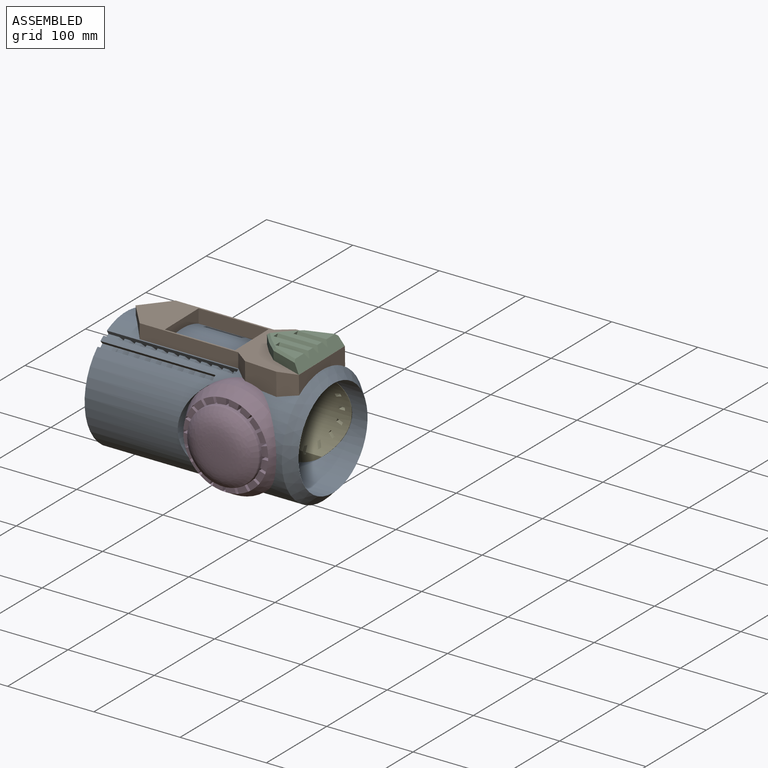
[diagram: assembled view]
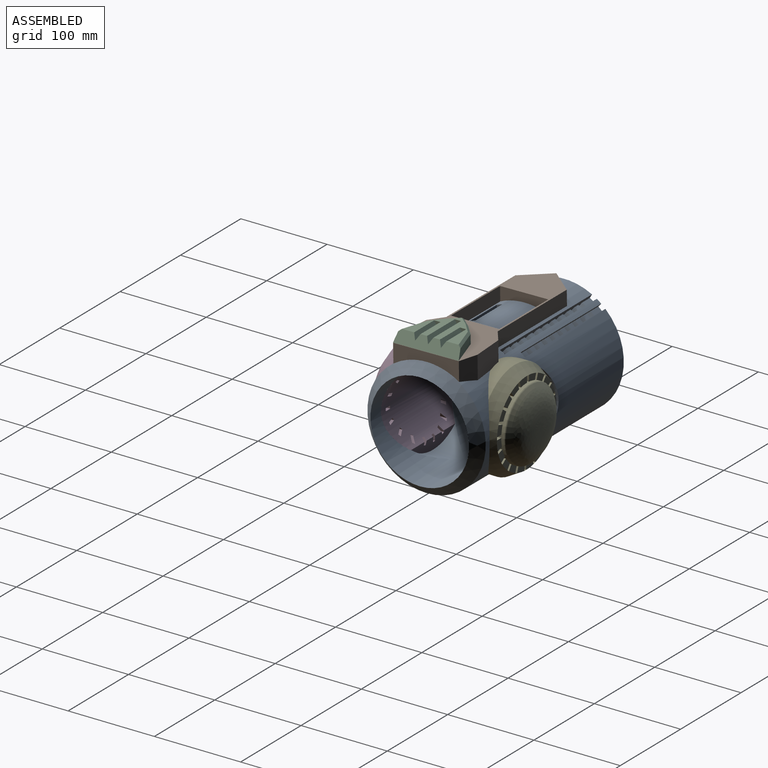
[diagram: assembled view, second angle]
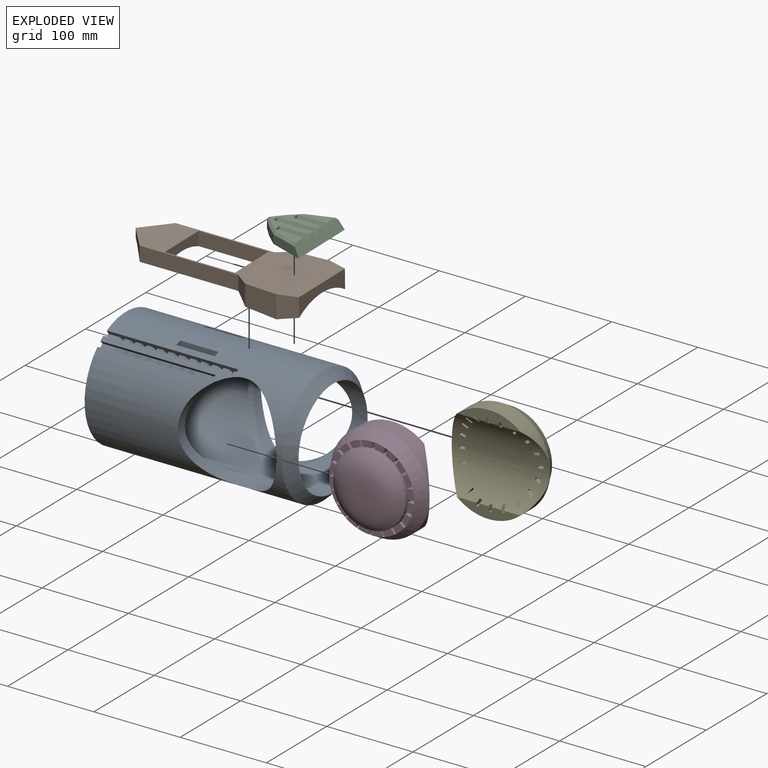
[diagram: exploded view]
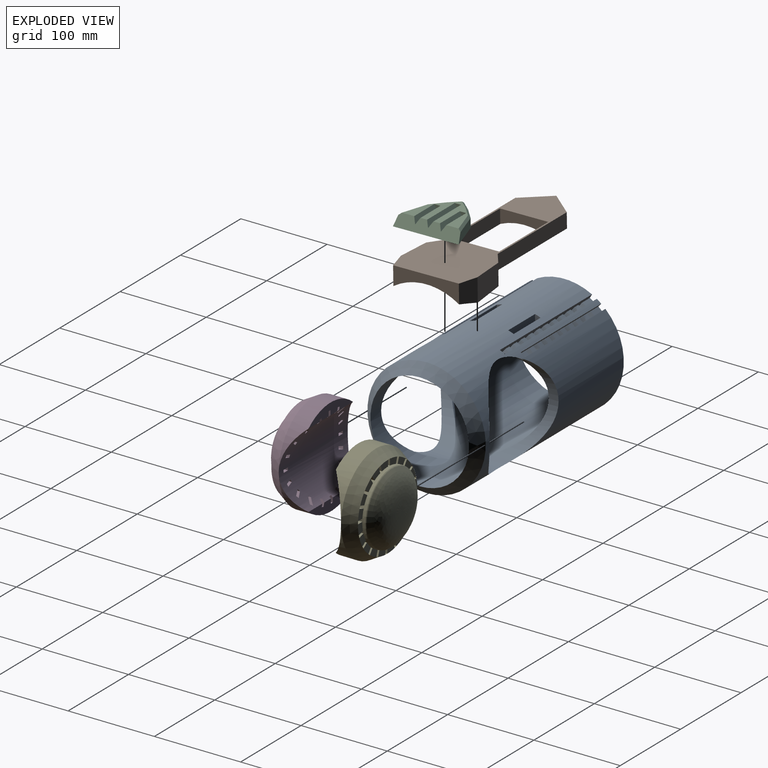
[diagram: exploded view, second angle]
ASSEMBLY  parts=5 mates=4
PART A: 139 faces, bbox 240.1x137.2x137.2 mm
  f0: cylinder r=57.15mm len=165.1mm, axis (-1,0,0), area 43709.9mm2, adj f14,f29,f31,f38,f41,f45,f49,f51
  f1: plane 131.1x4.8mm, normal (0,-0.65,0.76), area 447mm2, adj f14,f31,f35,f36,f88,f91,f92,f94
  f2: plane 6.43x5.49mm, normal (0,-0.5,0.86), area 40.3mm2, adj f41,f42,f110,f128
  f3: plane 6.43x5.49mm, normal (0,-0.5,0.86), area 40.3mm2, adj f41,f42,f104,f130
  f4: plane 6.43x5.49mm, normal (0,-0.5,0.86), area 40.3mm2, adj f41,f42,f114,f124
  f5: plane 6.43x5.49mm, normal (0,-0.5,0.86), area 40.3mm2, adj f41,f42,f116,f126
  f6: plane 6.43x5.49mm, normal (0,-0.5,0.86), area 40.3mm2, adj f41,f42,f102,f120
  f7: plane 6.43x5.49mm, normal (0,-0.5,0.86), area 40.3mm2, adj f41,f42,f112,f122
  f8: plane 6.43x5.49mm, normal (0,-0.5,0.86), area 40.3mm2, adj f41,f42,f108,f118
  f9: plane 6.35x4.29mm, normal (0,-0.5,0.86), area 19mm2, adj f14,f41,f43,f98
  f10: plane 6.43x5.49mm, normal (0,-0.5,0.86), area 40.3mm2, adj f41,f42,f92,f106
  f11: plane 6.43x5.49mm, normal (0,-0.5,0.86), area 40.3mm2, adj f41,f42,f88,f94
  f12: plane 12.78x5.49mm, normal (0,-0.5,0.86), area 81mm2, adj f31,f41,f42,f100
  f13: plane 6.43x5.49mm, normal (0,-0.5,0.86), area 40.3mm2, adj f41,f42,f90,f96
  f14: cylinder r=57.15mm len=114.3mm, axis (0,-1,0), area 6316.5mm2, adj f0,f1,f9,f30,f32,f36,f37,f41
  f15: plane 131.1x4.8mm, normal (0,0.65,0.76), area 447mm2, adj f29,f31,f33,f34,f45,f48,f49,f51
  f16: plane 8.13x6.38mm, normal (-1,0,0), area 29.7mm2, adj f29,f32,f33,f34,f47
  f17: plane 6.43x5.49mm, normal (0,0.5,0.86), area 40.3mm2, adj f38,f39,f66,f85
  f18: plane 6.43x5.49mm, normal (0,0.5,0.86), area 40.3mm2, adj f38,f39,f61,f86
  f19: plane 6.43x5.49mm, normal (0,0.5,0.86), area 40.3mm2, adj f38,f39,f70,f81
  f20: plane 6.43x5.49mm, normal (0,0.5,0.86), area 40.3mm2, adj f38,f39,f73,f82
  f21: plane 6.43x5.49mm, normal (0,0.5,0.86), area 40.3mm2, adj f38,f39,f58,f77
  f22: plane 6.43x5.49mm, normal (0,0.5,0.86), area 40.3mm2, adj f38,f39,f69,f78
  f23: plane 6.43x5.49mm, normal (0,0.5,0.86), area 40.3mm2, adj f38,f39,f65,f74
  f24: plane 6.35x4.29mm, normal (0,0.5,0.86), area 19mm2, adj f29,f38,f40,f55
  f25: plane 6.43x5.49mm, normal (0,0.5,0.86), area 40.3mm2, adj f38,f39,f49,f62
  f26: plane 6.43x5.49mm, normal (0,0.5,0.86), area 40.3mm2, adj f38,f39,f45,f51
  f27: plane 12.78x5.49mm, normal (0,0.5,0.86), area 81mm2, adj f31,f38,f39,f57
  f28: plane 6.43x5.49mm, normal (0,0.5,0.86), area 40.3mm2, adj f38,f39,f47,f53
  f29: cylinder r=57.15mm len=114.3mm, axis (0,-1,0), area 6308mm2, adj f0,f15,f16,f24,f30,f32,f33,f38
  f30: cylinder r=57.15mm len=114.3mm, axis (-1,0,0), area 13841.7mm2, adj f14,f29,f44
  f31: plane 137.16x137.16mm, normal (-1,0,0), area 4384.5mm2, adj f0,f1,f12,f15,f27,f32,f33,f34
  f32: cylinder r=68.58mm len=228.6mm, axis (-1,0,0), area 71213.9mm2, adj f14,f16,f29,f31,f33,f34,f35,f36
  f33: plane 133.37x3.87mm, normal (0,-0.76,0.65), area 674.9mm2, adj f15,f16,f29,f31,f32
  f34: plane 133.35x3.84mm, normal (0,0.76,-0.65), area 677.4mm2, adj f15,f16,f31,f32,f46,f50,f59,f63
  f35: plane 133.35x3.84mm, normal (0,-0.76,-0.65), area 677.4mm2, adj f1,f31,f32,f37,f89,f93,f101,f105
  f36: plane 133.37x3.87mm, normal (0,0.76,0.65), area 674.9mm2, adj f1,f14,f31,f32,f37
  f37: plane 8.13x6.38mm, normal (-1,0,0), area 29.7mm2, adj f14,f32,f35,f36,f90
  f38: plane 152.46x9.94mm, normal (0,0.86,-0.5), area 1197.5mm2, adj f0,f17,f18,f19,f20,f21,f22,f23
  f39: plane 152.4x4.39mm, normal (0,-0.86,0.5), area 761.2mm2, adj f17,f18,f19,f20,f21,f22,f23,f25
  f40: plane 8.04x5.07mm, normal (-1,0,0), area 25.3mm2, adj f24,f29,f32,f38,f39
  f41: plane 152.46x9.94mm, normal (0,-0.86,-0.5), area 1197.5mm2, adj f0,f2,f3,f4,f5,f6,f7,f8
  f42: plane 152.4x4.39mm, normal (0,0.86,0.5), area 761.2mm2, adj f2,f3,f4,f5,f6,f7,f8,f10
  f43: plane 8.04x5.07mm, normal (-1,0,0), area 25.3mm2, adj f9,f14,f32,f41,f42
  f44: cone r=55.88mm half-angle=45deg, axis (-1,0,0), area 6384.8mm2, adj f30,f32
  f45: revolved ~17.86x14.84mm, area 124.8mm2, adj f0,f15,f26,f29,f38,f46,f48
  f46: cylinder r=63.51mm len=6.35mm, axis (1,0,0), area 34.4mm2, adj f34,f39,f45,f47
  f47: revolved ~16.06x13.31mm, area 70.4mm2, adj f16,f28,f29,f38,f46
  f48: plane 4.12x1.62mm, normal (0,-0.69,0.73), area 4.5mm2, adj f15,f29,f45
  f49: revolved ~17.86x14.84mm, area 151.5mm2, adj f0,f15,f25,f38,f50,f52
  f50: cylinder r=63.51mm len=6.35mm, axis (1,0,0), area 34.4mm2, adj f34,f39,f49,f51
  f51: revolved ~17.86x14.84mm, area 151mm2, adj f0,f15,f26,f29,f38,f50,f52
  f52: plane 11.99x4.62mm, normal (0,-0.69,0.73), area 40.1mm2, adj f0,f15,f29,f49,f51
  f53: revolved ~10.4x8.3mm, area 27.9mm2, adj f28,f29,f38,f54
  f54: cylinder r=63.51mm len=4.53mm, axis (1,0,0), area 8mm2, adj f29,f39,f53
  f55: revolved ~5.39x4.2mm, area 7mm2, adj f24,f29,f38
  f56: plane 12.55x4.62mm, normal (0,-0.69,0.73), area 40.4mm2, adj f0,f15,f57,f58
  f57: revolved ~17.86x14.84mm, area 151.5mm2, adj f0,f15,f27,f38,f56,f59
  f58: revolved ~17.86x14.84mm, area 151.5mm2, adj f0,f15,f21,f38,f56,f59
  f59: cylinder r=63.51mm len=6.35mm, axis (1,0,0), area 34.4mm2, adj f34,f39,f57,f58
  f60: plane 12.55x4.62mm, normal (0,-0.69,0.73), area 40.4mm2, adj f0,f15,f61,f62
  f61: revolved ~17.86x14.84mm, area 151.5mm2, adj f0,f15,f18,f38,f60,f63
  f62: revolved ~17.86x14.84mm, area 151.5mm2, adj f0,f15,f25,f38,f60,f63
  f63: cylinder r=63.51mm len=6.35mm, axis (1,0,0), area 34.4mm2, adj f34,f39,f61,f62
  f64: plane 12.55x4.62mm, normal (0,-0.69,0.73), area 40.4mm2, adj f0,f15,f65,f66
  f65: revolved ~17.86x14.84mm, area 151.5mm2, adj f0,f15,f23,f38,f64,f67
  f66: revolved ~17.86x14.84mm, area 151.5mm2, adj f0,f15,f17,f38,f64,f67
  f67: cylinder r=63.51mm len=6.35mm, axis (1,0,0), area 34.4mm2, adj f34,f39,f65,f66
  f68: plane 12.55x4.62mm, normal (0,-0.69,0.73), area 40.4mm2, adj f0,f15,f69,f70
  f69: revolved ~17.86x14.84mm, area 151.5mm2, adj f0,f15,f22,f38,f68,f71
  f70: revolved ~17.86x14.84mm, area 151.5mm2, adj f0,f15,f19,f38,f68,f71
  f71: cylinder r=63.51mm len=6.35mm, axis (1,0,0), area 34.4mm2, adj f34,f39,f69,f70
  f72: plane 12.55x4.62mm, normal (0,-0.69,0.73), area 40.4mm2, adj f0,f15,f73,f74
  f73: revolved ~17.86x14.84mm, area 151.5mm2, adj f0,f15,f20,f38,f72,f75
  f74: revolved ~17.86x14.84mm, area 151.5mm2, adj f0,f15,f23,f38,f72,f75
  f75: cylinder r=63.51mm len=6.35mm, axis (1,0,0), area 34.4mm2, adj f34,f39,f73,f74
  f76: plane 12.55x4.62mm, normal (0,-0.69,0.73), area 40.4mm2, adj f0,f15,f77,f78
  f77: revolved ~17.86x14.84mm, area 151.5mm2, adj f0,f15,f21,f38,f76,f79
  f78: revolved ~17.86x14.84mm, area 151.5mm2, adj f0,f15,f22,f38,f76,f79
  f79: cylinder r=63.51mm len=6.35mm, axis (1,0,0), area 34.4mm2, adj f34,f39,f77,f78
  f80: plane 12.55x4.62mm, normal (0,-0.69,0.73), area 40.4mm2, adj f0,f15,f81,f82
  f81: revolved ~17.86x14.84mm, area 151.5mm2, adj f0,f15,f19,f38,f80,f83
  f82: revolved ~17.86x14.84mm, area 151.5mm2, adj f0,f15,f20,f38,f80,f83
  f83: cylinder r=63.51mm len=6.35mm, axis (1,0,0), area 34.4mm2, adj f34,f39,f81,f82
  f84: plane 12.55x4.62mm, normal (0,-0.69,0.73), area 40.4mm2, adj f0,f15,f85,f86
  f85: revolved ~17.86x14.84mm, area 151.5mm2, adj f0,f15,f17,f38,f84,f87
  f86: revolved ~17.86x14.84mm, area 151.5mm2, adj f0,f15,f18,f38,f84,f87
  f87: cylinder r=63.51mm len=6.35mm, axis (1,0,0), area 34.4mm2, adj f34,f39,f85,f86
  f88: revolved ~17.86x14.84mm, area 124.8mm2, adj f0,f1,f11,f14,f41,f89,f91
  f89: cylinder r=63.51mm len=6.35mm, axis (1,0,0), area 34.4mm2, adj f35,f42,f88,f90
  f90: revolved ~16.06x13.31mm, area 70.4mm2, adj f13,f14,f37,f41,f89
  f91: plane 4.12x1.62mm, normal (0,0.69,0.73), area 4.5mm2, adj f1,f14,f88
  f92: revolved ~17.86x14.84mm, area 151.5mm2, adj f0,f1,f10,f41,f93,f95
  f93: cylinder r=63.51mm len=6.35mm, axis (1,0,0), area 34.4mm2, adj f35,f42,f92,f94
  f94: revolved ~17.86x14.84mm, area 151mm2, adj f0,f1,f11,f14,f41,f93,f95
  f95: plane 11.99x4.62mm, normal (0,0.69,0.73), area 40.1mm2, adj f0,f1,f14,f92,f94
  f96: revolved ~10.4x8.3mm, area 27.9mm2, adj f13,f14,f41,f97
  f97: cylinder r=63.51mm len=4.53mm, axis (1,0,0), area 8mm2, adj f14,f42,f96
  f98: revolved ~5.39x4.2mm, area 7mm2, adj f9,f14,f41
  f99: plane 12.55x4.62mm, normal (0,0.69,0.73), area 40.4mm2, adj f0,f1,f100,f102
  f100: revolved ~126.9x126.69mm, area 3518.1mm2, adj f0,f1,f12,f41,f99,f101
  f101: cylinder r=63.51mm len=6.35mm, axis (1,0,0), area 34.4mm2, adj f35,f42,f100,f102
  f102: revolved ~126.9x126.69mm, area 3518.1mm2, adj f0,f1,f6,f41,f99,f101
  f103: plane 12.55x4.62mm, normal (0,0.69,0.73), area 40.4mm2, adj f0,f1,f104,f106
  f104: revolved ~126.9x126.69mm, area 3518.1mm2, adj f0,f1,f3,f41,f103,f105
  f105: cylinder r=63.51mm len=6.35mm, axis (1,0,0), area 34.4mm2, adj f35,f42,f104,f106
  f106: revolved ~126.9x126.69mm, area 3518.1mm2, adj f0,f1,f10,f41,f103,f105
  f107: plane 12.55x4.62mm, normal (0,0.69,0.73), area 40.4mm2, adj f0,f1,f108,f110
  f108: revolved ~17.86x14.84mm, area 151.5mm2, adj f0,f1,f8,f41,f107,f109
  f109: cylinder r=63.51mm len=6.35mm, axis (1,0,0), area 34.4mm2, adj f35,f42,f108,f110
  f110: revolved ~126.9x126.69mm, area 3518.1mm2, adj f0,f1,f2,f41,f107,f109
  f111: plane 12.55x4.62mm, normal (0,0.69,0.73), area 40.4mm2, adj f0,f1,f112,f114
  f112: revolved ~126.9x126.69mm, area 3518.1mm2, adj f0,f1,f7,f41,f111,f113
  f113: cylinder r=63.51mm len=6.35mm, axis (1,0,0), area 34.4mm2, adj f35,f42,f112,f114
  f114: revolved ~126.9x126.69mm, area 3518.1mm2, adj f0,f1,f4,f41,f111,f113
  f115: plane 12.55x4.62mm, normal (0,0.69,0.73), area 40.4mm2, adj f0,f1,f116,f118
  f116: revolved ~126.9x126.69mm, area 3518.1mm2, adj f0,f1,f5,f41,f115,f117
  f117: cylinder r=63.51mm len=6.35mm, axis (1,0,0), area 34.4mm2, adj f35,f42,f116,f118
  f118: revolved ~126.9x126.69mm, area 3518.1mm2, adj f0,f1,f8,f41,f115,f117
  f119: plane 12.55x4.62mm, normal (0,0.69,0.73), area 40.4mm2, adj f0,f1,f120,f122
  f120: revolved ~17.86x14.84mm, area 151.5mm2, adj f0,f1,f6,f41,f119,f121
  f121: cylinder r=63.51mm len=6.35mm, axis (1,0,0), area 34.4mm2, adj f35,f42,f120,f122
  f122: revolved ~126.9x126.69mm, area 3518.1mm2, adj f0,f1,f7,f41,f119,f121
  f123: plane 12.55x4.62mm, normal (0,0.69,0.73), area 40.4mm2, adj f0,f1,f124,f126
  f124: revolved ~17.86x14.84mm, area 151.5mm2, adj f0,f1,f4,f41,f123,f125
  f125: cylinder r=63.51mm len=6.35mm, axis (1,0,0), area 34.4mm2, adj f35,f42,f124,f126
  f126: revolved ~126.9x126.69mm, area 3518.1mm2, adj f0,f1,f5,f41,f123,f125
  f127: plane 12.55x4.62mm, normal (0,0.69,0.73), area 40.4mm2, adj f0,f1,f128,f130
  f128: revolved ~17.86x14.84mm, area 151.5mm2, adj f0,f1,f2,f41,f127,f129
  f129: cylinder r=63.51mm len=6.35mm, axis (1,0,0), area 34.4mm2, adj f35,f42,f128,f130
  f130: revolved ~126.9x126.69mm, area 3518.1mm2, adj f0,f1,f3,f41,f127,f129
  f131: plane 44.45x12.51mm, normal (0,-1,0), area 556mm2, adj f0,f32,f132,f134
  f132: plane 14.69x6.35mm, normal (1,0,0), area 77.7mm2, adj f0,f32,f131,f133
  f133: plane 44.45x12mm, normal (0,1,0), area 533.4mm2, adj f0,f32,f132,f134
  f134: plane 14.69x6.35mm, normal (-1,0,0), area 77.7mm2, adj f0,f32,f131,f133
  f135: plane 44.45x12.51mm, normal (0,1,0), area 556mm2, adj f0,f32,f136,f138
  f136: plane 14.69x6.35mm, normal (-1,0,0), area 77.7mm2, adj f0,f32,f135,f137
  f137: plane 44.45x12mm, normal (0,-1,0), area 533.4mm2, adj f0,f32,f136,f138
  f138: plane 14.69x6.35mm, normal (1,0,0), area 77.7mm2, adj f0,f32,f135,f137
PART B: 17 faces, bbox 215.9x88.9x26.5 mm
  f0: plane 215.9x88.9mm, normal (0,0,1), area 9297.3mm2, adj f2,f3,f4,f5,f6,f7,f8,f9
  f1: cylinder r=68.58mm len=215.9mm, axis (1,0,0), area 9875.5mm2, adj f2,f3,f4,f5,f6,f7,f8,f9
  f2: plane 26.52x21.83mm, normal (0.28,-0.96,0), area 546.2mm2, adj f0,f1,f3,f12
  f3: plane 76.2x21.72mm, normal (1,0,0), area 1057.1mm2, adj f0,f1,f2,f4
  f4: plane 26.52x21.83mm, normal (0.28,0.96,0), area 546.2mm2, adj f0,f1,f3,f5
  f5: plane 38.02x26.52mm, normal (-0.07,1,0), area 970.4mm2, adj f0,f1,f4,f6
  f6: plane 24.46x16.35mm, normal (-0.59,0.8,0), area 415.3mm2, adj f0,f1,f5,f7
  f7: plane 114.3x16.99mm, normal (0,1,0), area 1942.5mm2, adj f0,f1,f6,f8
  f8: plane 29.85x25.4mm, normal (-0.76,0.65,0), area 485.6mm2, adj f0,f1,f7,f9
  f9: plane 29.85x25.4mm, normal (-0.76,-0.65,0), area 485.6mm2, adj f0,f1,f8,f10
  f10: plane 114.3x16.99mm, normal (0,-1,0), area 1942.5mm2, adj f0,f1,f9,f11
  f11: plane 24.46x16.35mm, normal (-0.59,-0.8,0), area 415.3mm2, adj f0,f1,f10,f12
  f12: plane 38.02x26.52mm, normal (-0.07,-1,0), area 970.4mm2, adj f0,f1,f2,f11
  f13: plane 81.28x16.11mm, normal (0,-1,0), area 1309.4mm2, adj f0,f1,f14,f16
  f14: plane 55.88x16.11mm, normal (1,0,0), area 676.6mm2, adj f0,f1,f13,f15
  f15: plane 81.28x16.11mm, normal (0,1,0), area 1309.4mm2, adj f0,f1,f14,f16
  f16: plane 55.88x16.11mm, normal (-1,0,0), area 676.6mm2, adj f0,f1,f13,f15
PART C: 24 faces, bbox 63.5x76.2x12.7 mm
  f0: plane 65.77x52.49mm, normal (0,0,1), area 1386.4mm2, adj f8,f9,f10,f11,f12,f13,f14,f15
  f1: plane 38.1x12.7mm, normal (-0.32,0.95,0), area 375.4mm2, adj f2,f7,f17,f23
  f2: plane 14.17x12.7mm, normal (-0.67,0.74,0), area 193.3mm2, adj f1,f3,f7,f22
  f3: plane 12.7x11.23mm, normal (-0.75,0.66,0), area 172.2mm2, adj f2,f4,f7,f21
  f4: plane 12.7x11.23mm, normal (-0.75,-0.66,0), area 172.2mm2, adj f3,f5,f7,f20
  f5: plane 14.17x12.7mm, normal (-0.67,-0.74,0), area 193.3mm2, adj f4,f6,f7,f19
  f6: plane 38.1x12.7mm, normal (-0.32,-0.95,0), area 375.4mm2, adj f5,f7,f17,f18
  f7: plane 76.2x63.5mm, normal (0,0,-1), area 3101.9mm2, adj f1,f2,f3,f4,f5,f6,f17
  f8: plane 36.83x6.35mm, normal (0,0.87,0.5), area 256.1mm2, adj f0,f9,f10,f17
  f9: plane 36.83x6.35mm, normal (0,-0.87,0.5), area 256.1mm2, adj f0,f8,f10,f17
  f10: plane 7.33x6.35mm, normal (1,0,0), area 23.3mm2, adj f0,f8,f9
  f11: plane 36.83x6.35mm, normal (0,0.87,0.5), area 256.1mm2, adj f0,f12,f13,f17
  f12: plane 36.83x6.35mm, normal (0,-0.87,0.5), area 256.1mm2, adj f0,f11,f13,f17
  f13: plane 7.33x6.35mm, normal (1,0,0), area 23.3mm2, adj f0,f11,f12
  f14: plane 49.53x6.35mm, normal (0,0.87,0.5), area 349.2mm2, adj f0,f15,f16,f17
  f15: plane 49.53x6.35mm, normal (0,-0.87,0.5), area 349.2mm2, adj f0,f14,f16,f17
  f16: plane 7.33x6.35mm, normal (1,0,0), area 23.3mm2, adj f0,f14,f15
  f17: plane 76.2x12.7mm, normal (0.86,0,0.51), area 1001.6mm2, adj f0,f1,f6,f7,f8,f9,f11,f12
  f18: plane 32x12.91mm, normal (-0.22,-0.67,0.71), area 115.8mm2, adj f0,f6,f17,f19
  f19: plane 15.47x14.49mm, normal (-0.47,-0.53,0.71), area 67.1mm2, adj f0,f5,f18,f20
  f20: plane 13.03x12.7mm, normal (-0.53,-0.47,0.71), area 56.6mm2, adj f0,f4,f19,f21
  f21: plane 13.03x12.7mm, normal (-0.53,0.47,0.71), area 56.6mm2, adj f0,f3,f20,f22
  f22: plane 15.47x14.49mm, normal (-0.47,0.53,0.71), area 67.1mm2, adj f0,f2,f21,f23
  f23: plane 32x12.91mm, normal (-0.22,0.67,0.71), area 115.8mm2, adj f0,f1,f17,f22
PART D: 89 faces, bbox 114.3x40.1x114.3 mm
  f0: cylinder r=57.15mm len=114.3mm, axis (1,0,0), area 9539.3mm2, adj f21,f22,f23,f24,f26,f28,f29,f31
  f1: plane 13.32x10.93mm, normal (0,-1,0), area 79.6mm2, adj f25,f26,f84,f85
  f2: plane 13.18x12.53mm, normal (0,-1,0), area 79.6mm2, adj f25,f26,f81,f83
  f3: plane 12.9x11.74mm, normal (0,-1,0), area 79.6mm2, adj f25,f26,f78,f80
  f4: plane 12.01x9.16mm, normal (0,-1,0), area 79.6mm2, adj f25,f26,f75,f77
  f5: plane 12.16x8.26mm, normal (0,-1,0), area 79.6mm2, adj f25,f26,f72,f74
  f6: plane 13.32x10.93mm, normal (0,-1,0), area 79.6mm2, adj f25,f26,f69,f71
  f7: plane 13.18x12.53mm, normal (0,-1,0), area 79.6mm2, adj f25,f26,f66,f68
  f8: plane 12.9x11.74mm, normal (0,-1,0), area 79.6mm2, adj f25,f26,f62,f65
  f9: plane 12.01x9.16mm, normal (0,-1,0), area 79.6mm2, adj f25,f26,f59,f61
  f10: plane 12.16x8.26mm, normal (0,-1,0), area 79.6mm2, adj f25,f26,f56,f58
  f11: plane 13.32x10.93mm, normal (0,-1,0), area 79.6mm2, adj f25,f26,f54,f55
  f12: plane 13.18x12.53mm, normal (0,-1,0), area 79.6mm2, adj f25,f26,f51,f53
  f13: plane 12.9x11.74mm, normal (0,-1,0), area 79.6mm2, adj f25,f26,f48,f50
  f14: plane 12.01x9.16mm, normal (0,-1,0), area 79.6mm2, adj f25,f26,f45,f47
  f15: plane 12.16x8.26mm, normal (0,-1,0), area 79.6mm2, adj f25,f26,f42,f44
  f16: plane 13.32x10.93mm, normal (0,-1,0), area 79.6mm2, adj f25,f26,f39,f41
  f17: plane 13.18x12.53mm, normal (0,-1,0), area 79.6mm2, adj f25,f26,f36,f38
  f18: plane 12.9x11.74mm, normal (0,-1,0), area 79.6mm2, adj f25,f26,f32,f35
  f19: plane 12.01x9.16mm, normal (0,-1,0), area 79.6mm2, adj f25,f26,f29,f31
  f20: plane 12.16x8.26mm, normal (0,-1,0), area 79.6mm2, adj f25,f26,f28,f86
  f21: cylinder r=57.15mm len=114.3mm, axis (0,-1,0), area 2317.9mm2, adj f0,f24,f25
  f22: cylinder r=57.15mm len=114.3mm, axis (0,-1,0), area 2317.9mm2, adj f0,f23,f25
  f23: plane 73.66x13.45mm, normal (0,1,0), area 640.2mm2, adj f0,f22,f55,f56,f57,f58,f59,f60
  f24: plane 73.66x13.45mm, normal (0,1,0), area 640.2mm2, adj f0,f21,f28,f29,f30,f31,f32,f33
  f25: cone r=49.19mm half-angle=29.4deg, axis (0,1,0), area 5415.1mm2, adj f1,f2,f3,f4,f5,f6,f7,f8
  f26: cylinder r=42.06mm len=84.11mm, axis (0,1,0), area 2263.9mm2, adj f0,f1,f2,f3,f4,f5,f6,f7
  f27: revolved ~0x0mm, area 0mm2, adj f88
  f28: plane 34.44x7.13mm, normal (1,0,0), area 244.1mm2, adj f0,f20,f24,f26,f30
  f29: plane 34.44x7.15mm, normal (-1,0,0), area 244.5mm2, adj f0,f19,f24,f26,f30
  f30: cylinder r=49.19mm len=34.44mm, axis (0,-1,0), area 109.4mm2, adj f24,f25,f28,f29
  f31: plane 34.44x6.78mm, normal (0.95,0,-0.31), area 237.3mm2, adj f0,f19,f24,f26,f33
  f32: plane 34.44x6.8mm, normal (-0.95,0,0.31), area 232.6mm2, adj f0,f18,f24,f26,f33
  f33: cylinder r=49.19mm len=34.44mm, axis (0,-1,0), area 109.4mm2, adj f24,f25,f31,f32
  f34: cylinder r=49.19mm len=30.09mm, axis (0,-1,0), area 92.7mm2, adj f0,f25,f35,f36
  f35: plane 30.09x5.77mm, normal (0.81,0,-0.59), area 196.5mm2, adj f0,f18,f26,f34
  f36: plane 28.28x5.79mm, normal (-0.81,0,0.59), area 185.7mm2, adj f0,f17,f26,f34
  f37: cylinder r=49.19mm len=21.84mm, axis (0,-1,0), area 67mm2, adj f0,f25,f38,f39
  f38: plane 21.84x5.77mm, normal (0.59,0,-0.81), area 147.6mm2, adj f0,f17,f26,f37
  f39: plane 20.4x5.79mm, normal (-0.59,0,0.81), area 138.7mm2, adj f0,f16,f26,f37
  f40: cylinder r=49.19mm len=16.1mm, axis (0,-1,0), area 49.9mm2, adj f0,f25,f41,f42
  f41: plane 16.12x6.8mm, normal (0.31,0,-0.95), area 112.8mm2, adj f0,f16,f26,f40
  f42: plane 15.38x6.82mm, normal (-0.31,0,0.95), area 108.4mm2, adj f0,f15,f26,f40
  f43: cylinder r=49.19mm len=14.22mm, axis (0,-1,0), area 45mm2, adj f0,f25,f44,f45
  f44: plane 14.12x7.13mm, normal (0,0,-1), area 100.7mm2, adj f0,f15,f26,f43
  f45: plane 14.22x7.15mm, normal (0,0,1), area 101.8mm2, adj f0,f14,f26,f43
  f46: cylinder r=49.19mm len=17.18mm, axis (0,-1,0), area 53mm2, adj f0,f25,f47,f48
  f47: plane 16.27x6.8mm, normal (-0.31,0,-0.95), area 113.8mm2, adj f0,f14,f26,f46
  f48: plane 17.18x6.8mm, normal (0.31,0,0.95), area 120.3mm2, adj f0,f13,f26,f46
  f49: cylinder r=49.19mm len=23.68mm, axis (0,-1,0), area 72.7mm2, adj f0,f25,f50,f51
  f50: plane 22.11x5.77mm, normal (-0.59,0,-0.81), area 149.4mm2, adj f0,f13,f26,f49
  f51: plane 23.68x5.79mm, normal (0.59,0,0.81), area 160mm2, adj f0,f12,f26,f49
  f52: cylinder r=49.19mm len=32.22mm, axis (0,-1,0), area 99.5mm2, adj f0,f25,f53,f54
  f53: plane 30.42x5.77mm, normal (-0.81,0,-0.59), area 198.6mm2, adj f0,f12,f26,f52
  f54: plane 32.22x5.79mm, normal (0.81,0,0.59), area 210.4mm2, adj f0,f11,f26,f52
  f55: plane 34.44x6.78mm, normal (-0.95,0,-0.31), area 238mm2, adj f0,f11,f23,f26,f57
  f56: plane 34.46x6.82mm, normal (0.95,0,0.31), area 241.8mm2, adj f0,f10,f23,f26,f57
  f57: cylinder r=49.19mm len=34.44mm, axis (0,-1,0), area 109.4mm2, adj f23,f25,f55,f56
  f58: plane 34.44x7.13mm, normal (-1,0,0), area 244.1mm2, adj f0,f10,f23,f26,f60
  f59: plane 34.44x7.15mm, normal (1,0,0), area 244.5mm2, adj f0,f9,f23,f26,f60
  f60: cylinder r=49.19mm len=34.44mm, axis (0,-1,0), area 109.4mm2, adj f23,f25,f58,f59
  f61: plane 34.44x6.78mm, normal (-0.95,0,0.31), area 237.3mm2, adj f0,f9,f23,f26,f63
  f62: plane 34.44x6.8mm, normal (0.95,0,-0.31), area 232.6mm2, adj f0,f8,f23,f26,f63
  f63: cylinder r=49.19mm len=34.44mm, axis (0,-1,0), area 109.4mm2, adj f23,f25,f61,f62
  f64: cylinder r=49.19mm len=30.09mm, axis (0,-1,0), area 92.7mm2, adj f0,f25,f65,f66
  f65: plane 30.09x5.77mm, normal (-0.81,0,0.59), area 196.5mm2, adj f0,f8,f26,f64
  f66: plane 28.28x5.79mm, normal (0.81,0,-0.59), area 185.7mm2, adj f0,f7,f26,f64
  f67: cylinder r=49.19mm len=21.84mm, axis (0,-1,0), area 67mm2, adj f0,f25,f68,f69
  f68: plane 21.84x5.77mm, normal (-0.59,0,0.81), area 147.6mm2, adj f0,f7,f26,f67
  f69: plane 20.4x5.79mm, normal (0.59,0,-0.81), area 138.7mm2, adj f0,f6,f26,f67
  f70: cylinder r=49.19mm len=16.1mm, axis (0,-1,0), area 49.9mm2, adj f0,f25,f71,f72
  f71: plane 16.12x6.8mm, normal (-0.31,0,0.95), area 112.8mm2, adj f0,f6,f26,f70
  f72: plane 15.38x6.82mm, normal (0.31,0,-0.95), area 108.4mm2, adj f0,f5,f26,f70
  f73: cylinder r=49.19mm len=14.22mm, axis (0,-1,0), area 45mm2, adj f0,f25,f74,f75
  f74: plane 14.12x7.13mm, normal (0,0,1), area 100.7mm2, adj f0,f5,f26,f73
  f75: plane 14.22x7.15mm, normal (0,0,-1), area 101.8mm2, adj f0,f4,f26,f73
  f76: cylinder r=49.19mm len=17.18mm, axis (0,-1,0), area 53mm2, adj f0,f25,f77,f78
  f77: plane 16.27x6.8mm, normal (0.31,0,0.95), area 113.8mm2, adj f0,f4,f26,f76
  f78: plane 17.18x6.8mm, normal (-0.31,0,-0.95), area 120.3mm2, adj f0,f3,f26,f76
  f79: cylinder r=49.19mm len=23.68mm, axis (0,-1,0), area 72.7mm2, adj f0,f25,f80,f81
  f80: plane 22.11x5.77mm, normal (0.59,0,0.81), area 149.4mm2, adj f0,f3,f26,f79
  f81: plane 23.68x5.79mm, normal (-0.59,0,-0.81), area 160mm2, adj f0,f2,f26,f79
  f82: cylinder r=49.19mm len=32.22mm, axis (0,-1,0), area 99.5mm2, adj f0,f25,f83,f84
  f83: plane 30.42x5.77mm, normal (0.81,0,0.59), area 198.6mm2, adj f0,f2,f26,f82
  f84: plane 32.22x5.79mm, normal (-0.81,0,-0.59), area 210.4mm2, adj f0,f1,f26,f82
  f85: plane 34.44x6.78mm, normal (0.95,0,0.31), area 238mm2, adj f0,f1,f24,f26,f87
  f86: plane 34.46x6.82mm, normal (-0.95,0,-0.31), area 241.8mm2, adj f0,f20,f24,f26,f87
  f87: cylinder r=49.19mm len=34.44mm, axis (0,-1,0), area 109.4mm2, adj f24,f25,f85,f86
  f88: torus R=39.52mm, axis (0,-1,0), area 535mm2, adj f26,f27
PART E: same geometry as D
PLACE A t=(-115.89,4.41,-8.81)mm
PLACE B rot(axis=(1,0,0),0.9deg) t=(112.05,4.41,-8.81)mm
PLACE C rot(axis=(1,0,0),0.9deg) t=(112.05,3.04,70.06)mm
PLACE D rot(axis=(1,0,0),0deg) t=(25.68,-62.4,-8.83)mm
PLACE E rot(axis=(1,0,0),179.7deg) t=(24.84,71.22,-9.14)mm
MATE cylindrical B.f1 <-> A.f32  axis (1,0,0) through (3.45,4.41,-8.81)mm
MATE parallel C.f7 <-> B.f0  axis (0,0.01,-1) through (87.88,3.04,70.06)mm
MATE cylindrical D.f0 <-> A.f32  axis (1,0,0) through (107.47,4.41,-8.81)mm
MATE cylindrical E.f0 <-> A.f32  axis (1,0,0) through (48.79,4.41,-8.81)mm
